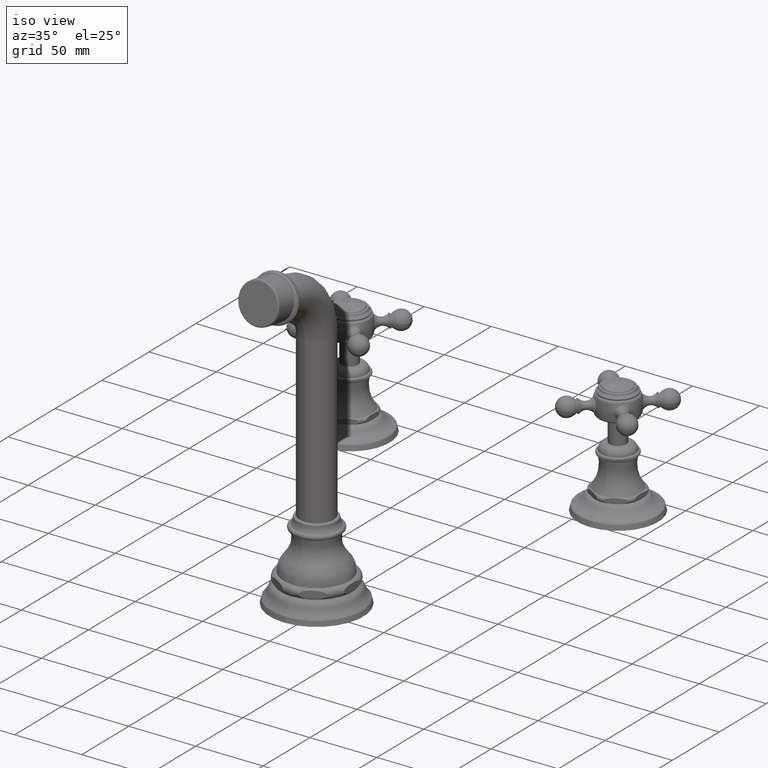
[diagram: clean part render]
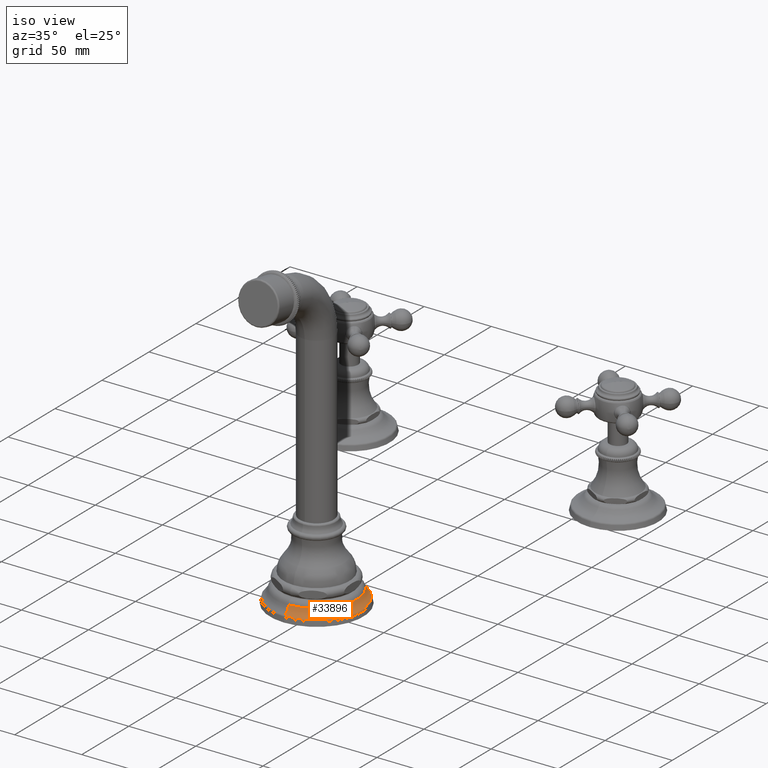
[diagram: same view with one face highlighted and labeled with its STEP entity id]
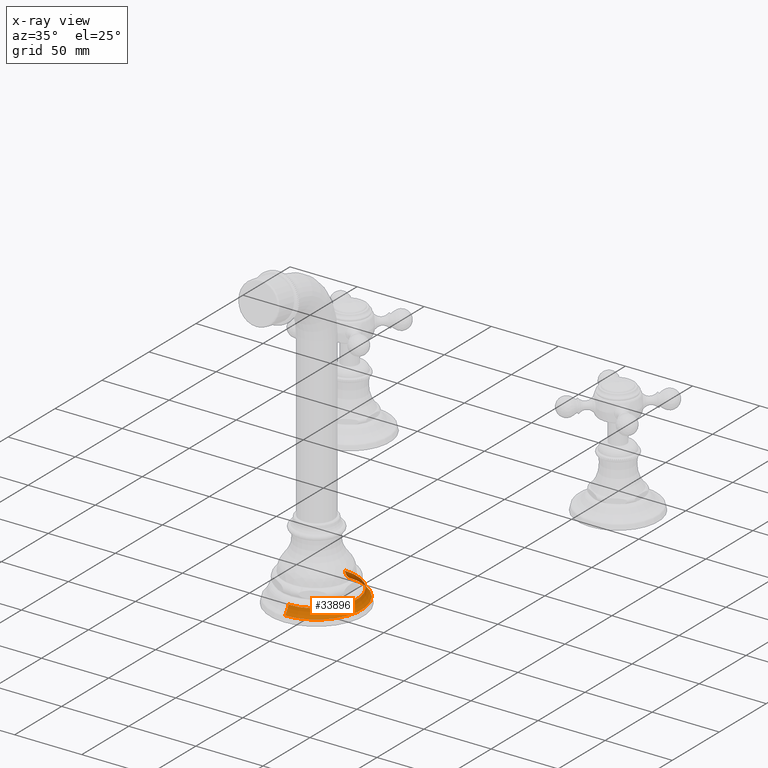
[diagram: x-ray of the same camera — body ghosted, the highlighted face saturated]
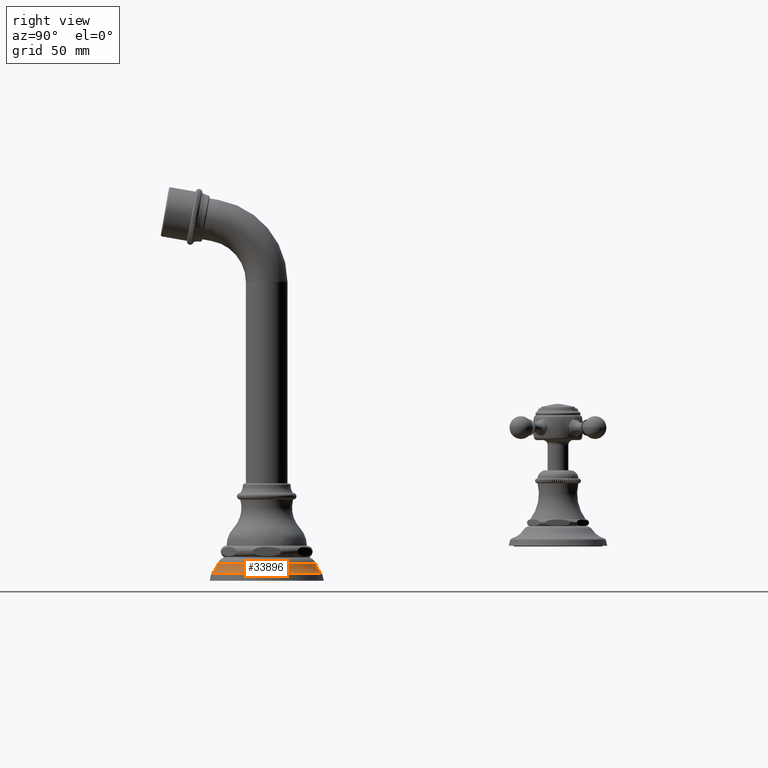
[diagram: same view with one face highlighted and labeled with its STEP entity id]
A machine part, iso view. The second image highlights one B-rep face of the part: STEP entity #33896.
The next image is the same camera in x-ray: the body ghosted, the highlighted face saturated — about 0% of this face is hidden behind the body in this view.
A second angle (right view) of the same face is appended — the face is thin or edge-on in the first view.
In plain terms, the highlighted toroidal blend (fillet) surface has major radius 41.0026 mm and minor (blend) radius 11.43 mm.
Its self-contained STEP definition (entity closure, byte-faithful):
#31481=CARTESIAN_POINT('',(0.E0,0.E0,-4.384596149362E-1));
#31482=DIRECTION('',(0.E0,0.E0,-1.E0));
#31483=DIRECTION('',(0.E0,1.E0,0.E0));
#31484=AXIS2_PLACEMENT_3D('',#31481,#31482,#31483);
#31529=CARTESIAN_POINT('',(0.E0,1.614276941798E0,-3.274060203368E-1));
#31530=DIRECTION('',(-1.E0,0.E0,0.E0));
#31531=DIRECTION('',(0.E0,-6.477712485429E-1,-7.618348965236E-1));
#31532=AXIS2_PLACEMENT_3D('',#31529,#31530,#31531);
#31537=CARTESIAN_POINT('',(0.E0,-1.614276941798E0,-3.274060203368E-1));
#31538=DIRECTION('',(1.E0,0.E0,0.E0));
#31539=DIRECTION('',(0.E0,6.477712485429E-1,-7.618348965236E-1));
#31540=AXIS2_PLACEMENT_3D('',#31537,#31538,#31539);
#31561=CARTESIAN_POINT('',(0.E0,0.E0,-6.702317237724E-1));
#31562=DIRECTION('',(0.E0,0.E0,1.E0));
#31563=DIRECTION('',(0.E0,-1.E0,0.E0));
#31564=AXIS2_PLACEMENT_3D('',#31561,#31562,#31563);
#32570=CARTESIAN_POINT('',(0.E0,1.178195413725E0,-4.384596149362E-1));
#32571=CARTESIAN_POINT('',(0.E0,-1.178195413725E0,-4.384596149362E-1));
#32572=VERTEX_POINT('',#32570);
#32573=VERTEX_POINT('',#32571);
#32582=CARTESIAN_POINT('',(0.E0,1.322779879953E0,-6.702317237724E-1));
#32583=CARTESIAN_POINT('',(0.E0,-1.322779879953E0,-6.702317237724E-1));
#32584=VERTEX_POINT('',#32582);
#32585=VERTEX_POINT('',#32583);
#33885=CARTESIAN_POINT('',(0.E0,0.E0,-3.274060203368E-1));
#33886=DIRECTION('',(0.E0,0.E0,-1.E0));
#33887=DIRECTION('',(0.E0,-1.E0,0.E0));
#33888=AXIS2_PLACEMENT_3D('',#33885,#33886,#33887);
#33889=TOROIDAL_SURFACE('',#33888,1.614276941798E0,4.5E-1);
#33890=ORIENTED_EDGE('',*,*,#33869,.F.);
#33891=ORIENTED_EDGE('',*,*,#33830,.T.);
#33892=ORIENTED_EDGE('',*,*,#33786,.F.);
#33893=ORIENTED_EDGE('',*,*,#33827,.F.);
#33894=EDGE_LOOP('',(#33890,#33891,#33892,#33893));
#33895=FACE_OUTER_BOUND('',#33894,.F.);
#31485=CIRCLE('',#31484,1.178195413725E0);
#31533=CIRCLE('',#31532,4.5E-1);
#31541=CIRCLE('',#31540,4.5E-1);
#31565=CIRCLE('',#31564,1.322779879953E0);
#33786=EDGE_CURVE('',#32572,#32573,#31485,.T.);
#33827=EDGE_CURVE('',#32584,#32572,#31533,.T.);
#33830=EDGE_CURVE('',#32585,#32573,#31541,.T.);
#33869=EDGE_CURVE('',#32585,#32584,#31565,.T.);
#33896=ADVANCED_FACE('',(#33895),#33889,.F.);